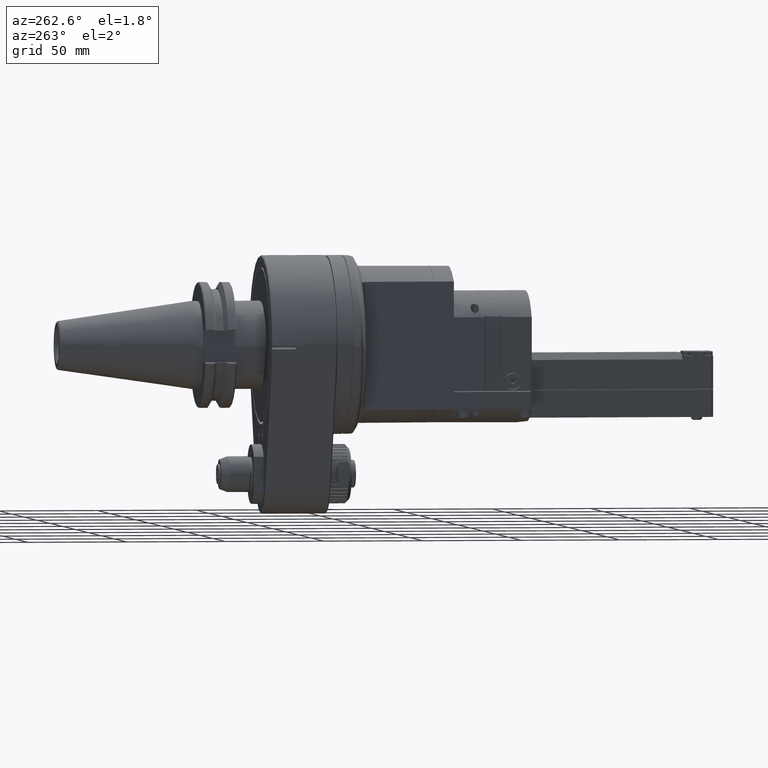
[diagram: clean part render]
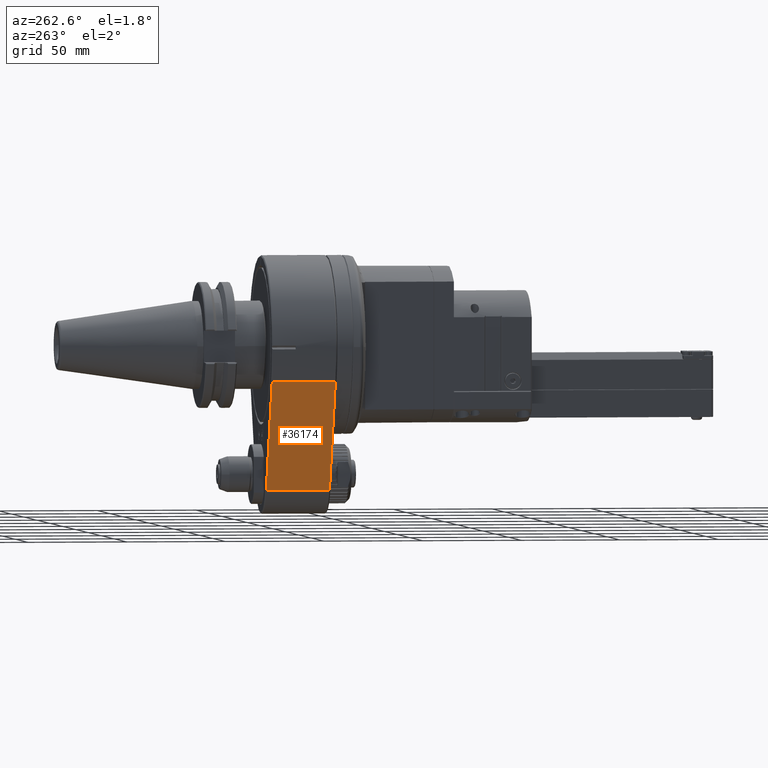
[diagram: same view with one face highlighted and labeled with its STEP entity id]
A machine part, auxiliary view. The second image highlights one B-rep face of the part: STEP entity #36174.
In plain terms, the highlighted planar face has unit normal (-0.9231, 0, -0.3846).
Its self-contained STEP definition (entity closure, byte-faithful):
#4140=LINE('',#75198,#6839);
#4150=LINE('',#75220,#6849);
#4151=LINE('',#75222,#6850);
#4152=LINE('',#75223,#6851);
#6839=VECTOR('',#49400,10.);
#6849=VECTOR('',#49426,10.);
#6850=VECTOR('',#49429,31.99969563317);
#6851=VECTOR('',#49430,32.00018741808);
#9660=FACE_OUTER_BOUND('',#11931,.T.);
#11931=EDGE_LOOP('',(#32275,#32276,#32277,#32278));
#16894=VERTEX_POINT('',#73705);
#17110=VERTEX_POINT('',#75193);
#17111=VERTEX_POINT('',#75197);
#17115=VERTEX_POINT('',#75216);
#22244=EDGE_CURVE('',#17111,#17110,#4140,.T.);
#22256=EDGE_CURVE('',#16894,#17115,#4150,.T.);
#22257=EDGE_CURVE('',#17115,#17111,#4151,.T.);
#22258=EDGE_CURVE('',#17110,#16894,#4152,.T.);
#32275=ORIENTED_EDGE('',*,*,#22256,.T.);
#32276=ORIENTED_EDGE('',*,*,#22257,.T.);
#32277=ORIENTED_EDGE('',*,*,#22244,.T.);
#32278=ORIENTED_EDGE('',*,*,#22258,.T.);
#34190=PLANE('',#39884);
#36174=ADVANCED_FACE('',(#9660),#34190,.T.);
#39884=AXIS2_PLACEMENT_3D('',#75221,#49427,#49428);
#49400=DIRECTION('',(-0.384615384615406,3.39139971075705E-14,0.923076923076914));
#49426=DIRECTION('',(0.384615384615406,3.39139971075705E-14,-0.923076923076914));
#49427=DIRECTION('center_axis',(-0.923076923076914,0.,-0.384615384615406));
#49428=DIRECTION('ref_axis',(-0.384615384615406,0.,0.923076923076914));
#49429=DIRECTION('',(-5.231420650501E-13,-1.,-2.184939694437E-13));
#49430=DIRECTION('',(5.357904936583E-13,1.,1.99061822447E-13));
#73705=CARTESIAN_POINT('',(-41.5383202524667,32.5003101427439,-17.3076334733757));
#75193=CARTESIAN_POINT('',(-41.5384616394059,0.500113797660992,-17.3076923845356));
#75197=CARTESIAN_POINT('',(-18.4615386000156,0.500150759076893,-72.6923076780329));
#75198=CARTESIAN_POINT('',(-24.2307692307706,0.500000000001736,-58.8461538461574));
#75216=CARTESIAN_POINT('',(-18.4615384204592,32.499849710546,-72.692307603216));
#75220=CARTESIAN_POINT('',(-24.2307692307709,32.4999999999983,-58.8461538461569));
#75221=CARTESIAN_POINT('Origin',(-18.46153846154,0.,-72.69230769231));
#75222=CARTESIAN_POINT('',(-18.46153848688,32.49985434569,-72.69230763089));
#75223=CARTESIAN_POINT('',(-41.53846152592,0.5001217498938,-17.30769233725));